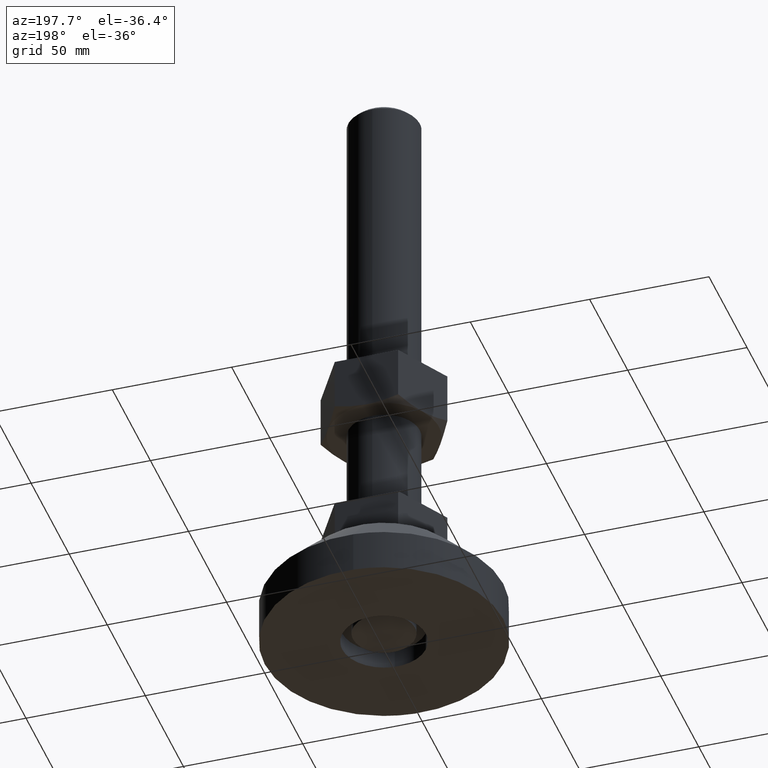
[diagram: clean part render]
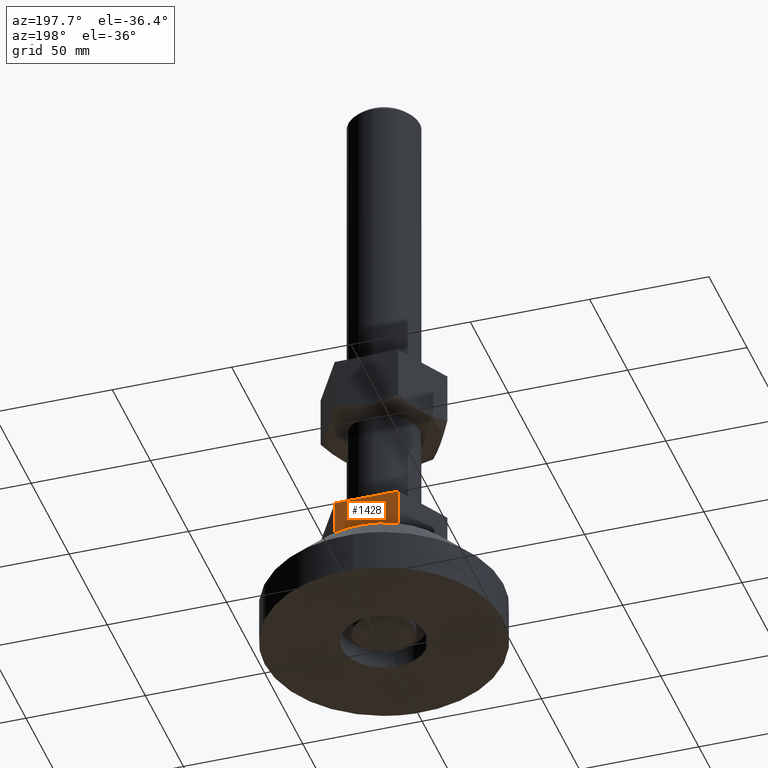
[diagram: same view with one face highlighted and labeled with its STEP entity id]
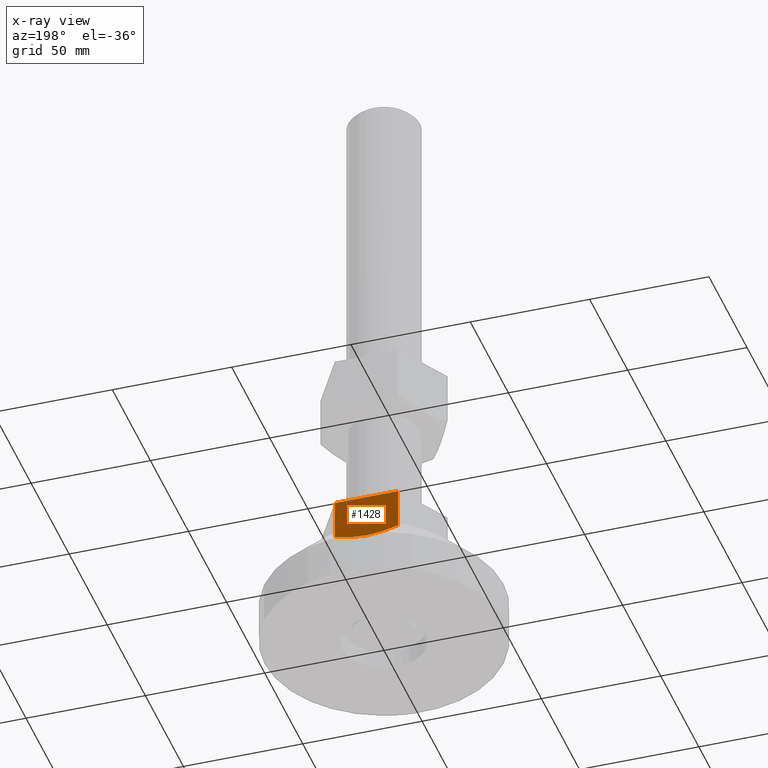
[diagram: x-ray of the same camera — body ghosted, the highlighted face saturated]
A machine part, auxiliary view. The second image highlights one B-rep face of the part: STEP entity #1428.
The next image is the same camera in x-ray: the body ghosted, the highlighted face saturated — about 2% of this face is hidden behind the body in this view.
In plain terms, the highlighted face is a freeform B-spline surface patch.
Its self-contained STEP definition (entity closure, byte-faithful):
#1086=CARTESIAN_POINT('',(13.279056191361621,23.000000000000352,55.499999999623597));
#1087=VERTEX_POINT('',#1086);
#1095=CARTESIAN_POINT('',(-13.279056191360841,23.000000000000352,55.499999999623597));
#1096=VERTEX_POINT('',#1095);
#1097=CARTESIAN_POINT('',(-13.279056191360841,23.000000000000352,55.499999999623597));
#1098=CARTESIAN_POINT('',(13.279056191361621,23.000000000000352,55.499999999623597));
#1099=QUASI_UNIFORM_CURVE('',1,(#1097,#1098),.UNSPECIFIED.,.F.,.U.);
#1100=EDGE_CURVE('',#1096,#1087,#1099,.T.);
#1164=CARTESIAN_POINT('',(13.279056191236499,23.000000000000352,38.554277141207599));
#1165=VERTEX_POINT('',#1164);
#1181=CARTESIAN_POINT('',(13.279056191361621,23.000000000000352,55.499999999623597));
#1182=CARTESIAN_POINT('',(13.279056191236499,23.000000000000352,38.554277141207599));
#1183=QUASI_UNIFORM_CURVE('',1,(#1181,#1182),.UNSPECIFIED.,.F.,.U.);
#1184=EDGE_CURVE('',#1087,#1165,#1183,.T.);
#1341=CARTESIAN_POINT('',(-13.279056191360841,23.000000000000352,38.554277141243603));
#1342=VERTEX_POINT('',#1341);
#1343=CARTESIAN_POINT('',(-13.279056191360841,23.000000000000352,55.499999999623597));
#1344=CARTESIAN_POINT('',(-13.279056191360841,23.000000000000352,38.554277141243603));
#1345=QUASI_UNIFORM_CURVE('',1,(#1343,#1344),.UNSPECIFIED.,.F.,.U.);
#1346=EDGE_CURVE('',#1096,#1342,#1345,.T.);
#1383=CARTESIAN_POINT('',(-14.605633853403051,23.000000000000352,35.550950036844490));
#1384=CARTESIAN_POINT('',(-14.605633853403051,23.000000000000352,56.449050472398817));
#1385=CARTESIAN_POINT('',(14.605634565747920,23.000000000000352,35.550950036844490));
#1386=CARTESIAN_POINT('',(14.605634565747920,23.000000000000352,56.449050472398817));
#1387=B_SPLINE_SURFACE_WITH_KNOTS('',1,1,((#1383,#1385),(#1384,#1386)),.UNSPECIFIED.,.F.,.F.,.U.,(2,2),(2,2),(0.0,20.898100435554330),(0.0,29.211268419150969),.UNSPECIFIED.);
#1388=ORIENTED_EDGE('',*,*,#1184,.T.);
#1389=CARTESIAN_POINT('',(2.131628E-013,23.000000000000352,36.500000000000000));
#1390=VERTEX_POINT('',#1389);
#1391=CARTESIAN_POINT('',(13.279056191236490,23.000000000000352,38.554277141207621));
#1392=CARTESIAN_POINT('',(12.205800248867810,23.000000000000359,38.244454837589977));
#1393=CARTESIAN_POINT('',(11.125465257801340,23.000000000000352,37.960680902756593));
#1394=CARTESIAN_POINT('',(8.947244764041168,23.000000000000352,37.457712642403990));
#1395=CARTESIAN_POINT('',(7.849348172462468,23.000000000000352,37.238559120017797));
#1396=CARTESIAN_POINT('',(6.186543639294234,23.000000000000352,36.968554628168171));
#1397=CARTESIAN_POINT('',(5.351149180239742,23.000000000000359,36.848242223515221));
#1398=CARTESIAN_POINT('',(4.509252360488371,23.000000000000352,36.751856181941740));
#1399=CARTESIAN_POINT('',(3.946488721740145,23.000000000000352,36.693114944508622));
#1400=CARTESIAN_POINT('',(3.664036735765282,23.000000000000352,36.666477429830422));
#1401=CARTESIAN_POINT('',(2.252219217108382,23.000000000000359,36.547906682120988));
#1402=CARTESIAN_POINT('',(1.126312481473250,23.000000000000352,36.500112879650423));
#1403=CARTESIAN_POINT('',(0.002666415554527,23.000000000000352,36.500000066185748));
#1404=CARTESIAN_POINT('',(0.001333205677234,23.000000000000352,36.499999999590550));
#1405=CARTESIAN_POINT('',(8.691693E-010,23.000000000000352,36.500000000250289));
#1406=B_SPLINE_CURVE_WITH_KNOTS('',3,(#1391,#1392,#1393,#1394,#1395,#1396,#1397,#1398,#1399,#1400,#1401,#1402,#1403,#1404,#1405),.UNSPECIFIED.,.F.,.U.,(4,2,2,1,2,2,2,4),(0.499851510326904,0.624851510326904,0.749851510326904,0.812351510326904,0.843601510326904,0.874851510326904,0.999851510326904,1.0),.UNSPECIFIED.);
#1407=EDGE_CURVE('',#1165,#1390,#1406,.T.);
#1408=ORIENTED_EDGE('',*,*,#1407,.T.);
#1409=CARTESIAN_POINT('',(2.131628E-013,23.000000000000352,36.500000000000000));
#1410=CARTESIAN_POINT('',(-1.120971110945537,23.000000000000352,36.500000554987977));
#1411=CARTESIAN_POINT('',(-2.238358478054169,23.000000000000352,36.547547691858362));
#1412=CARTESIAN_POINT('',(-4.467642062875351,23.000000000000352,36.733182680512300));
#1413=CARTESIAN_POINT('',(-5.579535230906539,23.000000000000359,36.871310993313656));
#1414=CARTESIAN_POINT('',(-7.242781216654819,23.000000000000352,37.139450308559653));
#1415=CARTESIAN_POINT('',(-7.796433117159412,23.000000000000359,37.238958704735822));
#1416=CARTESIAN_POINT('',(-8.902316039217302,23.000000000000352,37.456826715253200));
#1417=CARTESIAN_POINT('',(-9.454778101141983,23.000000000000359,37.575237492846412));
#1418=CARTESIAN_POINT('',(-11.108759384392821,23.000000000000352,37.956187111132209));
#1419=CARTESIAN_POINT('',(-12.198869944537529,23.000000000000359,38.242454231052577));
#1420=CARTESIAN_POINT('',(-13.279056191360830,23.000000000000352,38.554277141243631));
#1421=B_SPLINE_CURVE_WITH_KNOTS('',3,(#1409,#1410,#1411,#1412,#1413,#1414,#1415,#1416,#1417,#1418,#1419,#1420),.UNSPECIFIED.,.F.,.U.,(4,2,2,2,2,4),(0.0,0.124851510296293,0.249851510296293,0.312351510296293,0.374851510296293,0.499851510296293),.UNSPECIFIED.);
#1422=EDGE_CURVE('',#1390,#1342,#1421,.T.);
#1423=ORIENTED_EDGE('',*,*,#1422,.T.);
#1424=ORIENTED_EDGE('',*,*,#1346,.F.);
#1425=ORIENTED_EDGE('',*,*,#1100,.T.);
#1426=EDGE_LOOP('',(#1388,#1408,#1423,#1424,#1425));
#1427=FACE_OUTER_BOUND('',#1426,.T.);
#1428=ADVANCED_FACE('',(#1427),#1387,.T.);